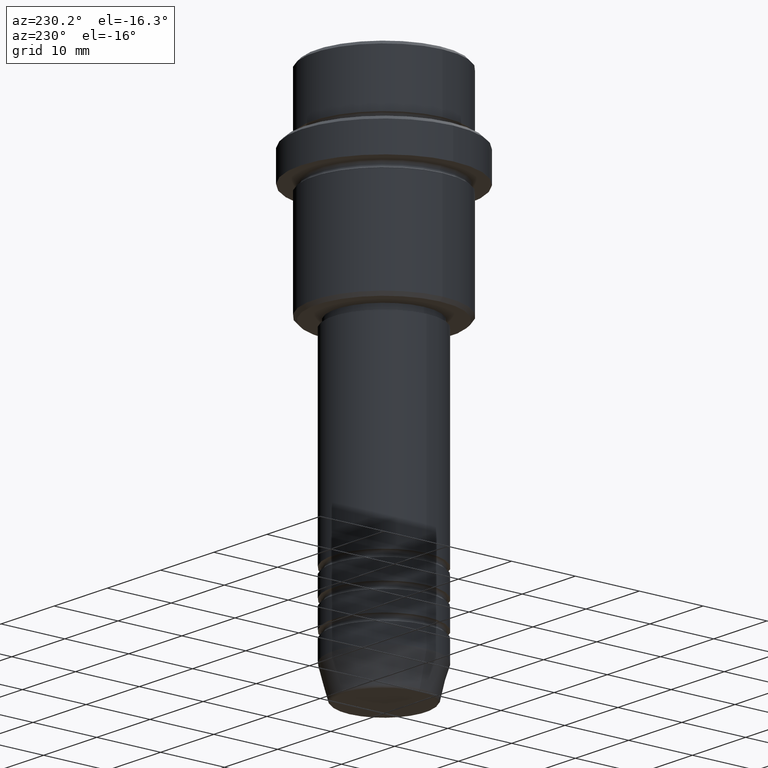
[diagram: clean part render]
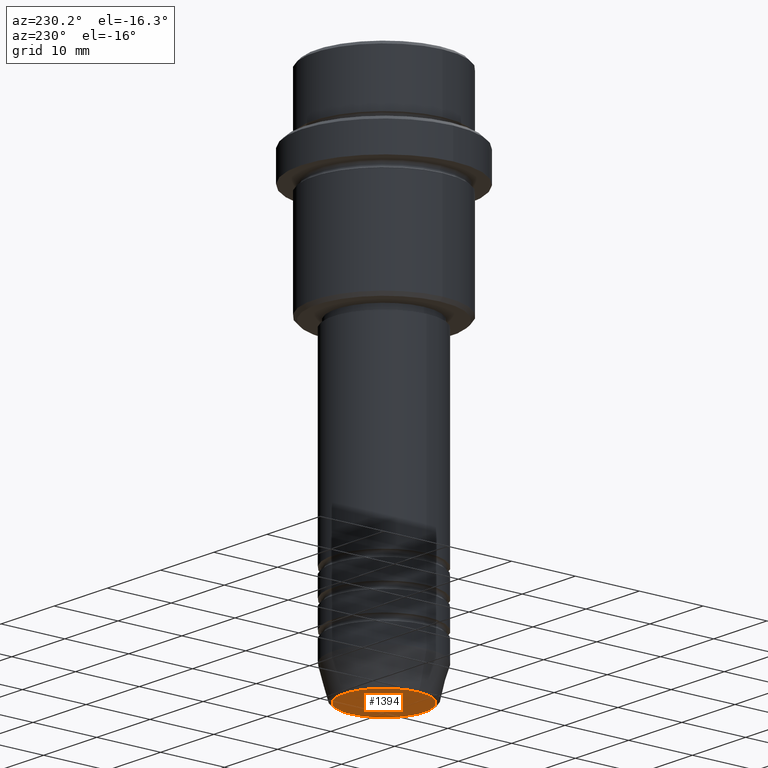
[diagram: same view with one face highlighted and labeled with its STEP entity id]
A machine part, auxiliary view. The second image highlights one B-rep face of the part: STEP entity #1394.
In plain terms, the highlighted planar face has unit normal (0, -0, 1).
Its self-contained STEP definition (entity closure, byte-faithful):
#123 = AXIS2_PLACEMENT_3D ( 'NONE', #640, #981, #1088 ) ;
#124 = CIRCLE ( 'NONE', #949, 6.276590543854900339 ) ;
#409 = CARTESIAN_POINT ( 'NONE',  ( -6.276590543854900339, 7.982336011935116411E-16, -80.00000000000001421 ) ) ;
#441 = PLANE ( 'NONE',  #123 ) ;
#472 = DIRECTION ( 'NONE',  ( 1.000000000000000000, 0.000000000000000000, 0.000000000000000000 ) ) ;
#489 = DIRECTION ( 'NONE',  ( 0.000000000000000000, 0.000000000000000000, -1.000000000000000000 ) ) ;
#499 = EDGE_LOOP ( 'NONE', ( #838, #549 ) ) ;
#549 = ORIENTED_EDGE ( 'NONE', *, *, #1411, .T. ) ;
#631 = EDGE_CURVE ( 'NONE', #708, #974, #124, .T. ) ;
#640 = CARTESIAN_POINT ( 'NONE',  ( 0.000000000000000000, 0.000000000000000000, -80.00000000000001421 ) ) ;
#655 = FACE_OUTER_BOUND ( 'NONE', #499, .T. ) ;
#676 = CARTESIAN_POINT ( 'NONE',  ( 0.000000000000000000, 0.000000000000000000, -80.00000000000001421 ) ) ;
#708 = VERTEX_POINT ( 'NONE', #817 ) ;
#762 = AXIS2_PLACEMENT_3D ( 'NONE', #676, #907, #472 ) ;
#811 = DIRECTION ( 'NONE',  ( 1.000000000000000000, 0.000000000000000000, 0.000000000000000000 ) ) ;
#817 = CARTESIAN_POINT ( 'NONE',  ( 6.276590543854900339, 0.000000000000000000, -80.00000000000001421 ) ) ;
#838 = ORIENTED_EDGE ( 'NONE', *, *, #631, .T. ) ;
#854 = CIRCLE ( 'NONE', #762, 6.276590543854900339 ) ;
#907 = DIRECTION ( 'NONE',  ( 0.000000000000000000, 0.000000000000000000, -1.000000000000000000 ) ) ;
#949 = AXIS2_PLACEMENT_3D ( 'NONE', #1028, #489, #811 ) ;
#974 = VERTEX_POINT ( 'NONE', #409 ) ;
#981 = DIRECTION ( 'NONE',  ( 0.000000000000000000, -0.000000000000000000, 1.000000000000000000 ) ) ;
#1028 = CARTESIAN_POINT ( 'NONE',  ( 0.000000000000000000, 0.000000000000000000, -80.00000000000001421 ) ) ;
#1088 = DIRECTION ( 'NONE',  ( 1.000000000000000000, 0.000000000000000000, 0.000000000000000000 ) ) ;
#1394 = ADVANCED_FACE ( 'NONE', ( #655 ), #441, .F. ) ;
#1411 = EDGE_CURVE ( 'NONE', #974, #708, #854, .T. ) ;